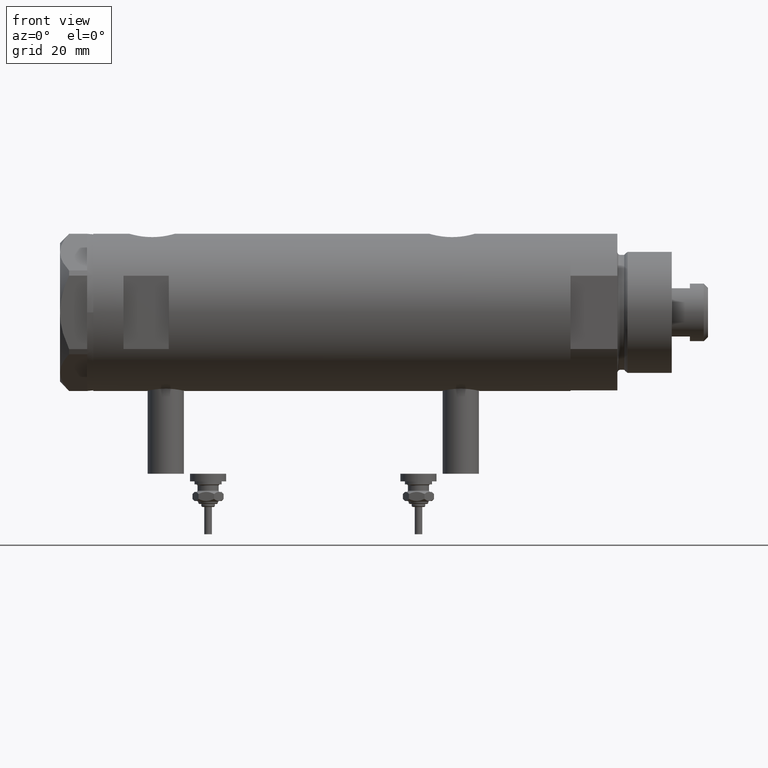
[diagram: clean part render]
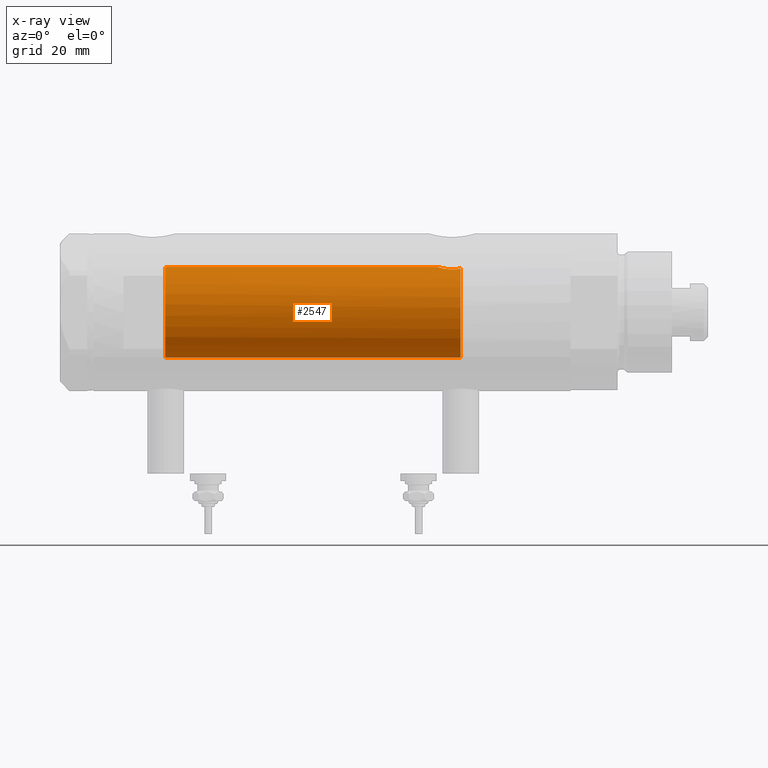
[diagram: x-ray — body ghosted, one internal face saturated and labeled with its STEP entity id]
A machine part, front view, then the same camera in x-ray: the body is ghosted and one INTERNAL B-rep face — a face not visible from any outside direction — is saturated and labeled: STEP entity #2547.
In plain terms, the highlighted cylindrical surface (partial cylindrical patch) has radius 15 mm, axis along (1, 0, -0).
Its self-contained STEP definition (entity closure, byte-faithful):
#30 = CARTESIAN_POINT ( 'NONE',  ( 0.000000000000000000, 0.000000000000000000, 78.95000000000000284 ) ) ;
#98 = DIRECTION ( 'NONE',  ( 1.000000000000000000, 0.000000000000000000, 0.000000000000000000 ) ) ;
#308 = VECTOR ( 'NONE', #2800, 1000.000000000000000 ) ;
#343 = CIRCLE ( 'NONE', #4752, 15.00000000000000000 ) ;
#352 = CARTESIAN_POINT ( 'NONE',  ( 14.92029983160078288, -1.555365312915176768, 54.83609703141411984 ) ) ;
#370 = CARTESIAN_POINT ( 'NONE',  ( 14.25977760983849052, -4.654557688538888627, -38.31736805897653397 ) ) ;
#467 = CARTESIAN_POINT ( 'NONE',  ( 14.42796883436190214, -4.108435602805831088, -37.10726922759031510 ) ) ;
#505 = AXIS2_PLACEMENT_3D ( 'NONE', #4094, #1793, #767 ) ;
#532 = CARTESIAN_POINT ( 'NONE',  ( 14.46277203719950855, -3.978470183374506863, -42.55000000000000426 ) ) ;
#613 = CARTESIAN_POINT ( 'NONE',  ( 15.00000000000000000, 1.836970198721029589E-15, 78.95000000000000284 ) ) ;
#767 = DIRECTION ( 'NONE',  ( -1.000000000000000000, 0.000000000000000000, 0.000000000000000000 ) ) ;
#770 = CARTESIAN_POINT ( 'NONE',  ( 15.00000000000000000, 0.000000000000000000, 54.58500000000000085 ) ) ;
#890 = CARTESIAN_POINT ( 'NONE',  ( 14.82638779339053947, -2.275571356824482638, 55.15000000000000568 ) ) ;
#1028 = EDGE_CURVE ( 'NONE', #4527, #2030, #4605, .T. ) ;
#1238 = VERTEX_POINT ( 'NONE', #5313 ) ;
#1363 = CARTESIAN_POINT ( 'NONE',  ( 14.18781489734108270, -4.868896704194245473, -39.85545969036063241 ) ) ;
#1367 = B_SPLINE_CURVE_WITH_KNOTS ( 'NONE', 3,
 ( #2311, #2888, #4333, #4265, #4865, #2379, #2858, #6182, #4802, #1363, #5244, #6280, #1921, #1784, #370, #3760, #1426, #467, #3274, #1851, #2799, #6151, #5337, #4295, #3786, #4240, #5672, #4836, #3406, #3310 ),
 .UNSPECIFIED., .F., .F.,
 ( 4, 2, 2, 2, 2, 2, 2, 2, 2, 2, 2, 2, 2, 2, 4 ),
 ( 0.004672505804584289359, 0.005337629501999303222, 0.006002753199414317953, 0.006667876896829330949, 0.007333000594244345680, 0.007998124291659358676, 0.008663247989074373406, 0.009328371686489388137, 0.009993495383904402868, 0.01132374277873441151, 0.01265399017356442016, 0.01331911387097942448, 0.01398423756839442880, 0.01464936126580943312, 0.01531448496322443745 ),
 .UNSPECIFIED. ) ;
#1426 = CARTESIAN_POINT ( 'NONE',  ( 14.33594561531104006, -4.414979644548145288, -37.69453393419243525 ) ) ;
#1618 = EDGE_CURVE ( 'NONE', #1238, #2030, #4266, .T. ) ;
#1784 = CARTESIAN_POINT ( 'NONE',  ( 14.23984499268011028, -4.714778477509579346, -38.53008258614764969 ) ) ;
#1793 = DIRECTION ( 'NONE',  ( 0.000000000000000000, 0.000000000000000000, -1.000000000000000000 ) ) ;
#1851 = CARTESIAN_POINT ( 'NONE',  ( 14.64727859494137263, -3.248701865452407578, -36.10174013696653361 ) ) ;
#1872 = CARTESIAN_POINT ( 'NONE',  ( 15.00000000000000000, 0.000000000000000000, 54.58500000000000085 ) ) ;
#1921 = CARTESIAN_POINT ( 'NONE',  ( 14.20926245015526135, -4.806160851464706063, -38.96377327795616452 ) ) ;
#2030 = VERTEX_POINT ( 'NONE', #4326 ) ;
#2127 = DIRECTION ( 'NONE',  ( -1.000000000000000000, 0.000000000000000000, 0.000000000000000000 ) ) ;
#2258 = EDGE_CURVE ( 'NONE', #6088, #5622, #6185, .T. ) ;
#2311 = CARTESIAN_POINT ( 'NONE',  ( 14.46277203719950855, -3.978470183374506863, -42.55000000000000426 ) ) ;
#2326 = CARTESIAN_POINT ( 'NONE',  ( 14.85289483991917514, -2.102865829523695940, 55.05860377881607093 ) ) ;
#2379 = CARTESIAN_POINT ( 'NONE',  ( 14.25856516724843992, -4.658255869285516937, -41.17044016644936733 ) ) ;
#2496 = DIRECTION ( 'NONE',  ( 0.000000000000000000, 0.000000000000000000, 1.000000000000000000 ) ) ;
#2547 = ADVANCED_FACE ( 'NONE', ( #5475 ), #5540, .F. ) ;
#2799 = CARTESIAN_POINT ( 'NONE',  ( 14.72015646623405871, -2.909233045280601893, -35.82572079632733164 ) ) ;
#2800 = DIRECTION ( 'NONE',  ( -0.000000000000000000, -0.000000000000000000, -1.000000000000000000 ) ) ;
#2858 = CARTESIAN_POINT ( 'NONE',  ( 14.23846660849503465, -4.718934182878722794, -40.95401121469808459 ) ) ;
#2871 = CARTESIAN_POINT ( 'NONE',  ( 14.98404828787190723, -0.7909490205761879889, 54.63356230794191504 ) ) ;
#2888 = CARTESIAN_POINT ( 'NONE',  ( 14.42775250319760083, -4.105775281508734054, -42.36911445102907692 ) ) ;
#3014 = LINE ( 'NONE', #613, #4131 ) ;
#3159 = ORIENTED_EDGE ( 'NONE', *, *, #1028, .T. ) ;
#3242 = EDGE_CURVE ( 'NONE', #4527, #4435, #1367, .T. ) ;
#3274 = CARTESIAN_POINT ( 'NONE',  ( 14.49994286062941562, -3.853373987417223479, -36.74743896782912600 ) ) ;
#3310 = CARTESIAN_POINT ( 'NONE',  ( 15.00000000000000000, 5.959273468635536151E-16, -34.88499999999999801 ) ) ;
#3354 = CARTESIAN_POINT ( 'NONE',  ( 14.87720562886504183, -1.924385875533401347, 54.97741675737692191 ) ) ;
#3406 = CARTESIAN_POINT ( 'NONE',  ( 15.00000000000000000, -0.2216692655473431750, -34.88499999999999091 ) ) ;
#3480 = ORIENTED_EDGE ( 'NONE', *, *, #2258, .F. ) ;
#3582 = DIRECTION ( 'NONE',  ( -0.000000000000000000, -0.000000000000000000, -1.000000000000000000 ) ) ;
#3703 = AXIS2_PLACEMENT_3D ( 'NONE', #30, #3582, #2127 ) ;
#3736 = EDGE_LOOP ( 'NONE', ( #3480, #4092, #3952, #3159, #4051, #5562 ) ) ;
#3760 = CARTESIAN_POINT ( 'NONE',  ( 14.30772250772359833, -4.505024017690383076, -37.90010806953218037 ) ) ;
#3786 = CARTESIAN_POINT ( 'NONE',  ( 14.92307637240703677, -1.532123959568890026, -35.12726557582075770 ) ) ;
#3952 = ORIENTED_EDGE ( 'NONE', *, *, #3242, .F. ) ;
#4051 = ORIENTED_EDGE ( 'NONE', *, *, #1618, .F. ) ;
#4092 = ORIENTED_EDGE ( 'NONE', *, *, #4914, .T. ) ;
#4094 = CARTESIAN_POINT ( 'NONE',  ( 0.000000000000000000, 0.000000000000000000, -42.55000000000000426 ) ) ;
#4131 = VECTOR ( 'NONE', #5363, 1000.000000000000000 ) ;
#4157 = CARTESIAN_POINT ( 'NONE',  ( 14.82638779339053947, -2.275571356824482638, 55.15000000000000568 ) ) ;
#4240 = CARTESIAN_POINT ( 'NONE',  ( 14.96064712090283777, -1.106639041422191827, -35.00738179736369915 ) ) ;
#4265 = CARTESIAN_POINT ( 'NONE',  ( 14.33349657381506681, -4.422893686125041413, -41.78827841538883092 ) ) ;
#4266 = LINE ( 'NONE', #4771, #308 ) ;
#4295 = CARTESIAN_POINT ( 'NONE',  ( 14.90017778876744892, -1.739641523727902372, -35.20130925695126223 ) ) ;
#4326 = CARTESIAN_POINT ( 'NONE',  ( -15.00000000000000000, 0.000000000000000000, -42.55000000000000426 ) ) ;
#4333 = CARTESIAN_POINT ( 'NONE',  ( 14.39424372609267877, -4.221002267729138779, -42.17893131093288872 ) ) ;
#4363 = CARTESIAN_POINT ( 'NONE',  ( 15.00000000000000000, 5.959273468635536151E-16, -34.88499999999999801 ) ) ;
#4372 = CARTESIAN_POINT ( 'NONE',  ( 15.00000000000000178, -0.3999014018875943210, 54.58500000000000796 ) ) ;
#4435 = VERTEX_POINT ( 'NONE', #4363 ) ;
#4527 = VERTEX_POINT ( 'NONE', #532 ) ;
#4605 = CIRCLE ( 'NONE', #505, 15.00000000000000000 ) ;
#4714 = CARTESIAN_POINT ( 'NONE',  ( 14.93900636919599911, -1.364886281976677607, 54.77622504971313333 ) ) ;
#4752 = AXIS2_PLACEMENT_3D ( 'NONE', #4909, #2496, #98 ) ;
#4771 = CARTESIAN_POINT ( 'NONE',  ( -15.00000000000000000, 0.000000000000000000, 78.95000000000000284 ) ) ;
#4802 = CARTESIAN_POINT ( 'NONE',  ( 14.19797987272029438, -4.839174951492910104, -40.29741451501411120 ) ) ;
#4836 = CARTESIAN_POINT ( 'NONE',  ( 14.99508877558421993, -0.4434836953032583184, -34.90007684727662252 ) ) ;
#4865 = CARTESIAN_POINT ( 'NONE',  ( 14.30602371879161439, -4.510400617436904014, -41.58665028800272268 ) ) ;
#4909 = CARTESIAN_POINT ( 'NONE',  ( 0.000000000000000000, 0.000000000000000000, 55.15000000000000568 ) ) ;
#4914 = EDGE_CURVE ( 'NONE', #6088, #4435, #3014, .T. ) ;
#5244 = CARTESIAN_POINT ( 'NONE',  ( 14.18786347641749757, -4.868757996482117711, -39.63322300400292875 ) ) ;
#5313 = CARTESIAN_POINT ( 'NONE',  ( -15.00000000000000000, 0.000000000000000000, 55.15000000000000568 ) ) ;
#5337 = CARTESIAN_POINT ( 'NONE',  ( 14.84733308118440220, -2.144376633039216440, -35.37751912952715827 ) ) ;
#5363 = DIRECTION ( 'NONE',  ( -0.000000000000000000, -0.000000000000000000, -1.000000000000000000 ) ) ;
#5475 = FACE_OUTER_BOUND ( 'NONE', #3736, .T. ) ;
#5534 = EDGE_CURVE ( 'NONE', #1238, #5622, #343, .T. ) ;
#5540 = CYLINDRICAL_SURFACE ( 'NONE', #3703, 15.00000000000000000 ) ;
#5562 = ORIENTED_EDGE ( 'NONE', *, *, #5534, .T. ) ;
#5622 = VERTEX_POINT ( 'NONE', #4157 ) ;
#5672 = CARTESIAN_POINT ( 'NONE',  ( 14.97537530859971966, -0.8874117095427771496, -34.96137464055828303 ) ) ;
#6088 = VERTEX_POINT ( 'NONE', #770 ) ;
#6151 = CARTESIAN_POINT ( 'NONE',  ( 14.81710879718117546, -2.343063746046468054, -35.48067662538952050 ) ) ;
#6182 = CARTESIAN_POINT ( 'NONE',  ( 14.20819413761015504, -4.809312895991456394, -40.51713251522166814 ) ) ;
#6185 = B_SPLINE_CURVE_WITH_KNOTS ( 'NONE', 3,
 ( #1872, #4372, #2871, #4714, #352, #3354, #2326, #890 ),
 .UNSPECIFIED., .F., .F.,
 ( 4, 2, 2, 4 ),
 ( 0.000000000000000000, 0.001182100180564266828, 0.001773150270846399808, 0.002364200361128533222 ),
 .UNSPECIFIED. ) ;
#6280 = CARTESIAN_POINT ( 'NONE',  ( 14.19858338301463441, -4.837406781463696070, -39.18614104090498529 ) ) ;